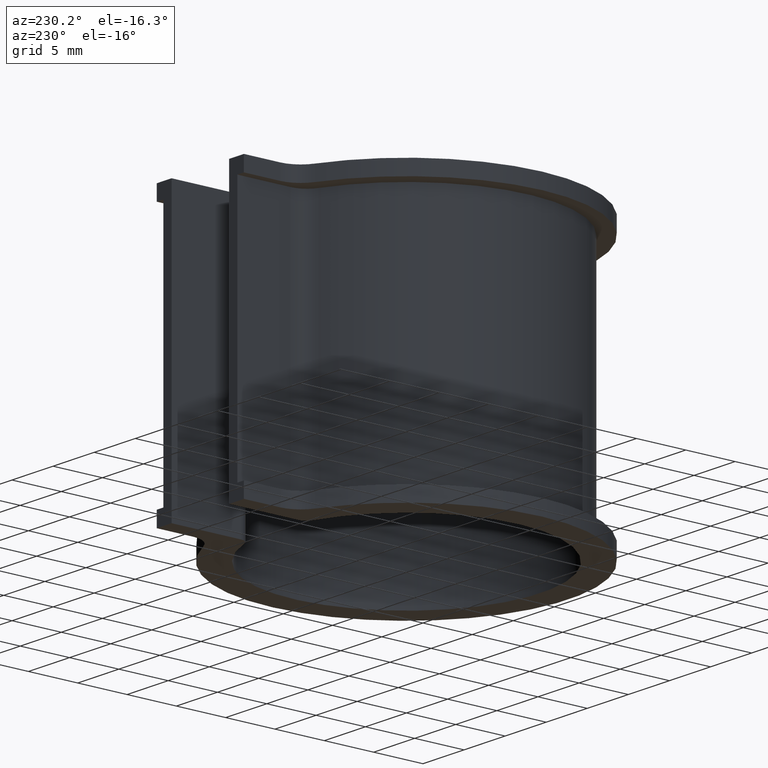
[diagram: clean part render]
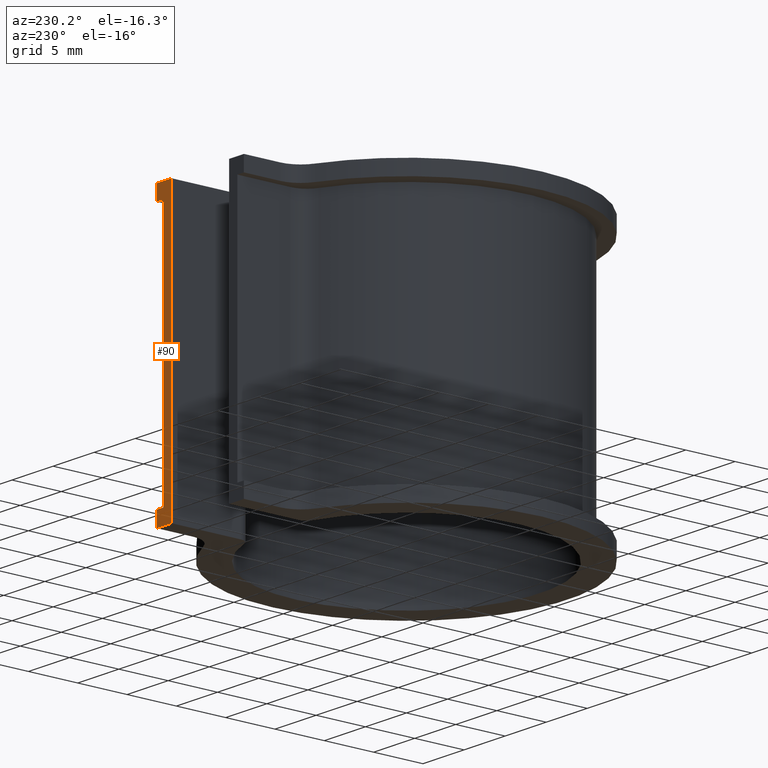
[diagram: same view with one face highlighted and labeled with its STEP entity id]
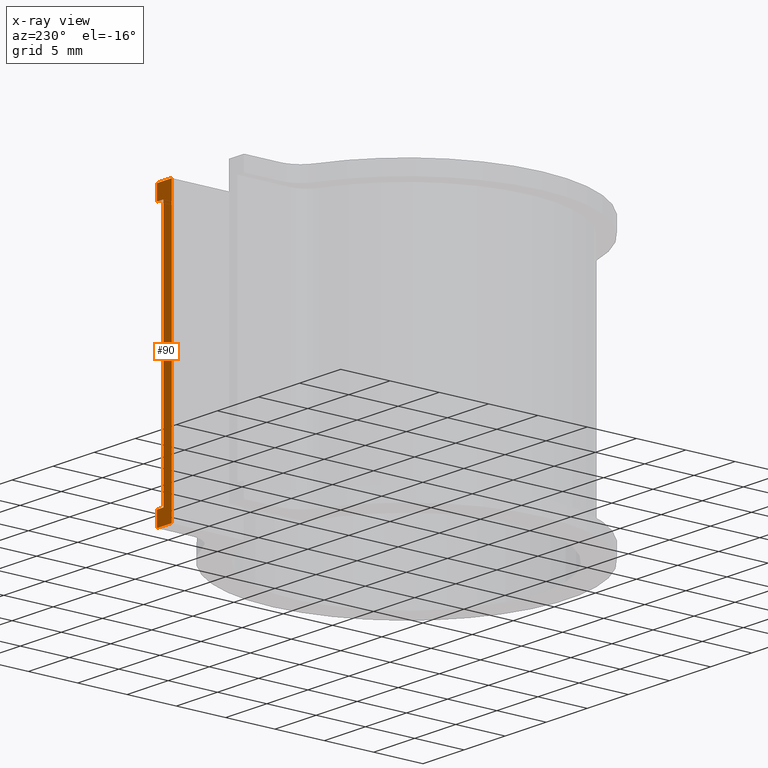
[diagram: x-ray of the same camera — body ghosted, the highlighted face saturated]
A machine part, auxiliary view. The second image highlights one B-rep face of the part: STEP entity #90.
The next image is the same camera in x-ray: the body ghosted, the highlighted face saturated — about 0% of this face is hidden behind the body in this view.
In plain terms, the highlighted planar face has unit normal (0, 1, 0).
Its self-contained STEP definition (entity closure, byte-faithful):
#90 = ADVANCED_FACE( '', ( #132 ), #133, .T. );
#132 = FACE_OUTER_BOUND( '', #184, .T. );
#133 = PLANE( '', #185 );
#184 = EDGE_LOOP( '', ( #339, #340, #341, #342, #343, #344, #345, #346 ) );
#185 = AXIS2_PLACEMENT_3D( '', #347, #348, #349 );
#339 = ORIENTED_EDGE( '', *, *, #431, .T. );
#340 = ORIENTED_EDGE( '', *, *, #473, .F. );
#341 = ORIENTED_EDGE( '', *, *, #478, .T. );
#342 = ORIENTED_EDGE( '', *, *, #446, .T. );
#343 = ORIENTED_EDGE( '', *, *, #482, .F. );
#344 = ORIENTED_EDGE( '', *, *, #483, .F. );
#345 = ORIENTED_EDGE( '', *, *, #484, .F. );
#346 = ORIENTED_EDGE( '', *, *, #457, .T. );
#347 = CARTESIAN_POINT( '', ( 4.50000000000003, 20.8992907623043, -25.0000000000000 ) );
#348 = DIRECTION( '', ( 0.000000000000000, 1.00000000000000, 0.000000000000000 ) );
#349 = DIRECTION( '', ( 1.00000000000000, 0.000000000000000, 0.000000000000000 ) );
#431 = EDGE_CURVE( '', #500, #505, #507, .T. );
#446 = EDGE_CURVE( '', #536, #534, #537, .T. );
#457 = EDGE_CURVE( '', #555, #500, #556, .T. );
#473 = EDGE_CURVE( '', #581, #505, #583, .T. );
#478 = EDGE_CURVE( '', #581, #536, #588, .T. );
#482 = EDGE_CURVE( '', #594, #534, #595, .T. );
#483 = EDGE_CURVE( '', #596, #594, #597, .T. );
#484 = EDGE_CURVE( '', #555, #596, #598, .T. );
#500 = VERTEX_POINT( '', #620 );
#505 = VERTEX_POINT( '', #627 );
#507 = LINE( '', #630, #631 );
#534 = VERTEX_POINT( '', #669 );
#536 = VERTEX_POINT( '', #672 );
#537 = LINE( '', #673, #674 );
#555 = VERTEX_POINT( '', #695 );
#556 = LINE( '', #696, #697 );
#581 = VERTEX_POINT( '', #728 );
#583 = LINE( '', #731, #732 );
#588 = LINE( '', #740, #741 );
#594 = VERTEX_POINT( '', #749 );
#595 = LINE( '', #750, #751 );
#596 = VERTEX_POINT( '', #752 );
#597 = LINE( '', #753, #754 );
#598 = LINE( '', #755, #756 );
#620 = CARTESIAN_POINT( '', ( 3.50000000000003, 20.8992907623043, -26.5000000000000 ) );
#627 = CARTESIAN_POINT( '', ( 3.50000000000003, 20.8992907623043, 1.50000000000000 ) );
#630 = CARTESIAN_POINT( '', ( 3.50000000000004, 20.8992907623043, -25.0000000000000 ) );
#631 = VECTOR( '', #791, 1000.00000000000 );
#669 = CARTESIAN_POINT( '', ( 4.50000000000001, 20.8992907623043, 0.000000000000000 ) );
#672 = CARTESIAN_POINT( '', ( 5.30000000000000, 20.8992907623043, 0.000000000000000 ) );
#673 = CARTESIAN_POINT( '', ( 5.30000000000003, 20.8992907623043, 0.000000000000000 ) );
#674 = VECTOR( '', #810, 1000.00000000000 );
#695 = CARTESIAN_POINT( '', ( 5.30000000000000, 20.8992907623043, -26.5000000000000 ) );
#696 = CARTESIAN_POINT( '', ( 5.30000000000003, 20.8992907623043, -26.5000000000000 ) );
#697 = VECTOR( '', #835, 1000.00000000000 );
#728 = CARTESIAN_POINT( '', ( 5.30000000000000, 20.8992907623043, 1.50000000000000 ) );
#731 = CARTESIAN_POINT( '', ( 5.30000000000003, 20.8992907623043, 1.50000000000000 ) );
#732 = VECTOR( '', #867, 1000.00000000000 );
#740 = CARTESIAN_POINT( '', ( 5.30000000000000, 20.8992907623043, 1.50000000000000 ) );
#741 = VECTOR( '', #874, 1000.00000000000 );
#749 = CARTESIAN_POINT( '', ( 4.50000000000001, 20.8992907623043, -25.0000000000000 ) );
#750 = CARTESIAN_POINT( '', ( 4.50000000000001, 20.8992907623043, -25.0000000000000 ) );
#751 = VECTOR( '', #880, 1000.00000000000 );
#752 = CARTESIAN_POINT( '', ( 5.30000000000000, 20.8992907623043, -25.0000000000000 ) );
#753 = CARTESIAN_POINT( '', ( 5.30000000000003, 20.8992907623043, -25.0000000000000 ) );
#754 = VECTOR( '', #881, 1000.00000000000 );
#755 = CARTESIAN_POINT( '', ( 5.30000000000000, 20.8992907623043, -26.5000000000000 ) );
#756 = VECTOR( '', #882, 1000.00000000000 );
#791 = DIRECTION( '', ( 0.000000000000000, 0.000000000000000, 1.00000000000000 ) );
#810 = DIRECTION( '', ( -1.00000000000000, 0.000000000000000, 0.000000000000000 ) );
#835 = DIRECTION( '', ( -1.00000000000000, 0.000000000000000, 0.000000000000000 ) );
#867 = DIRECTION( '', ( -1.00000000000000, 0.000000000000000, 0.000000000000000 ) );
#874 = DIRECTION( '', ( 0.000000000000000, 0.000000000000000, -1.00000000000000 ) );
#880 = DIRECTION( '', ( 0.000000000000000, 0.000000000000000, 1.00000000000000 ) );
#881 = DIRECTION( '', ( -1.00000000000000, 0.000000000000000, 0.000000000000000 ) );
#882 = DIRECTION( '', ( 0.000000000000000, 0.000000000000000, 1.00000000000000 ) );